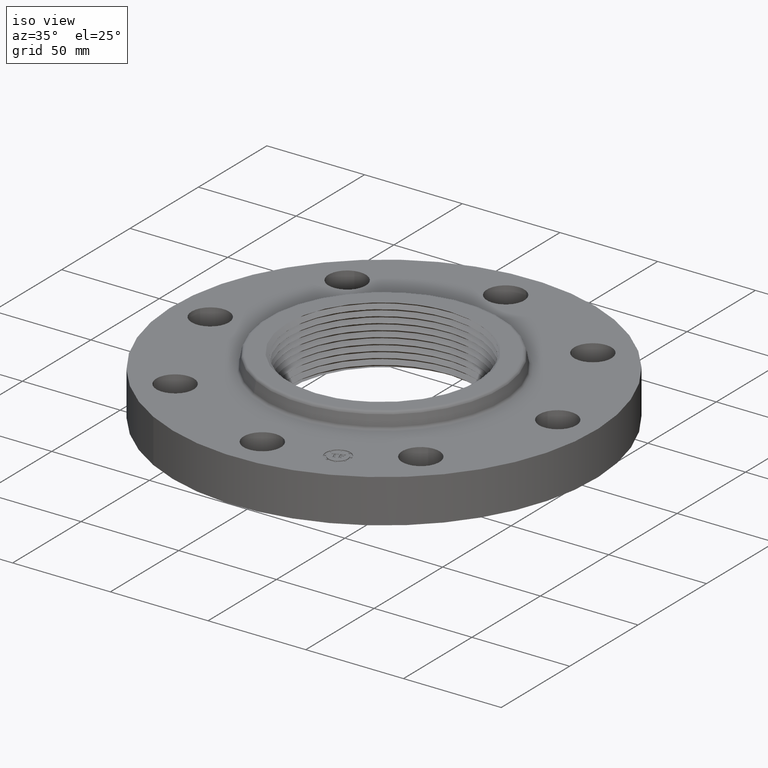
[diagram: clean part render]
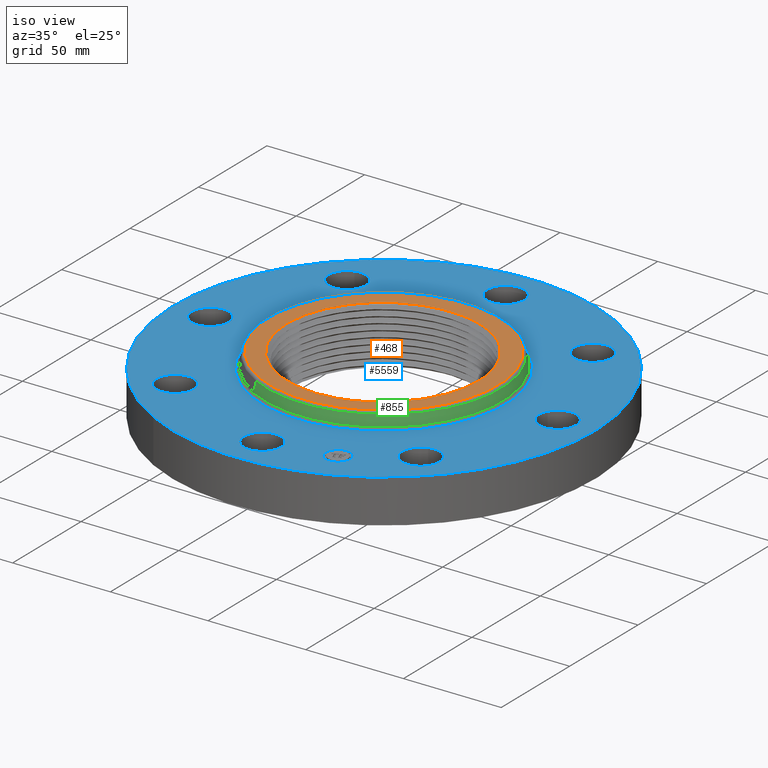
[diagram: same view with three faces highlighted in distinct colors, each labeled with its STEP entity id]
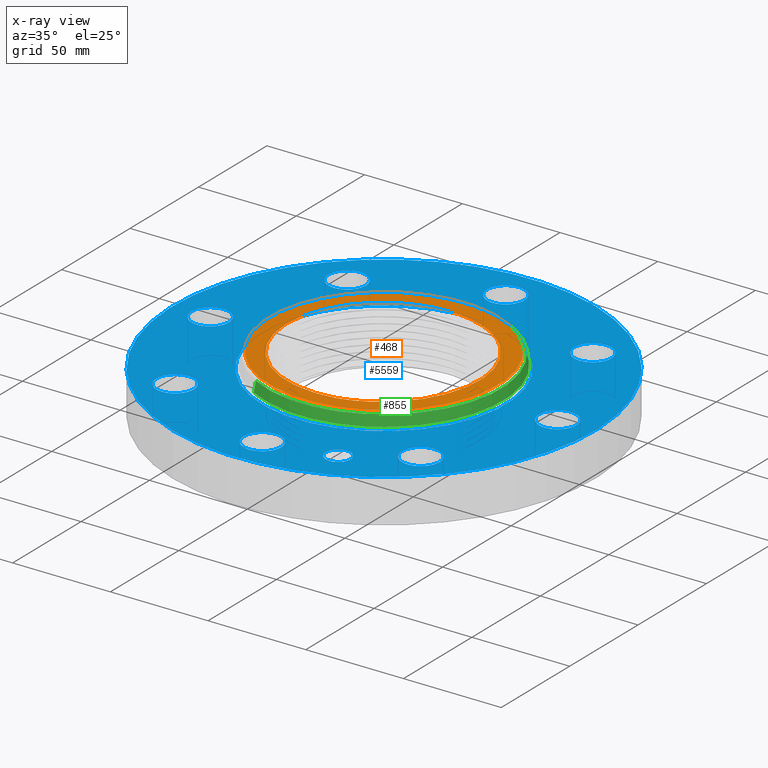
[diagram: x-ray of the same camera — body ghosted, the three highlighted faces saturated]
A machine part, iso view with three faces highlighted in distinct colors.
The next image is the same camera in x-ray (body ghosted, the three faces saturated) — at least one of them is partly hidden behind the body in this view.
Their STEP definitions:

[orange] entity #468 — the highlighted planar face has unit normal (0, 0, -1).
#330=AXIS2_PLACEMENT_3D('Plane Axis2P3D',#327,#328,#329) ;
#334=AXIS2_PLACEMENT_3D('Circle Axis2P3D',#332,#333,$) ;
#343=AXIS2_PLACEMENT_3D('Circle Axis2P3D',#341,#342,$) ;
#352=AXIS2_PLACEMENT_3D('Circle Axis2P3D',#350,#351,$) ;
#327=CARTESIAN_POINT('Axis2P3D Location',(0.,2.29999265812,1.19)) ;
#332=CARTESIAN_POINT('Axis2P3D Location',(0.,0.,1.19)) ;
#336=CARTESIAN_POINT('Vertex',(1.1026752189,2.01843344924,1.19)) ;
#338=CARTESIAN_POINT('Vertex',(-1.1026752189,-2.01843344924,1.19)) ;
#341=CARTESIAN_POINT('Axis2P3D Location',(0.,0.,1.19)) ;
#350=CARTESIAN_POINT('Axis2P3D Location',(0.,2.79741234551E-016,1.19)) ;
#354=CARTESIAN_POINT('Vertex',(-0.173145763064,1.88586947374,1.18999998745)) ;
#356=CARTESIAN_POINT('Vertex',(-0.012973802318,1.89375679819,1.19000001267)) ;
#360=CARTESIAN_POINT('Control Point',(6.08389549083E-007,1.8940309938,1.19)) ;
#361=CARTESIAN_POINT('Control Point',(-0.00259453115065,1.89398504057,1.19)) ;
#362=CARTESIAN_POINT('Control Point',(-0.00518955092956,1.89393464195,1.19)) ;
#363=CARTESIAN_POINT('Control Point',(-0.00778445313768,1.89387979795,1.19)) ;
#364=CARTESIAN_POINT('Control Point',(-0.010379202862,1.89382050942,1.19)) ;
#365=CARTESIAN_POINT('Control Point',(-0.012973802297,1.89375677645,1.19)) ;
#366=CARTESIAN_POINT('Vertex',(6.08389549063E-007,1.8940309938,1.19)) ;
#370=CARTESIAN_POINT('Control Point',(0.950521699549,-1.73991951894,1.19)) ;
#371=CARTESIAN_POINT('Control Point',(1.07749882745,-1.66773656651,1.19)) ;
#372=CARTESIAN_POINT('Control Point',(1.19772911907,-1.58391506986,1.19)) ;
#373=CARTESIAN_POINT('Control Point',(1.30977614698,-1.48928683391,1.19)) ;
#374=CARTESIAN_POINT('Control Point',(1.51496417429,-1.28060908227,1.19)) ;
#375=CARTESIAN_POINT('Control Point',(1.67818530347,-1.03826564195,1.19)) ;
#376=CARTESIAN_POINT('Control Point',(1.74827643949,-0.909954205358,1.19)) ;
#377=CARTESIAN_POINT('Control Point',(1.8349238505,-0.709027775724,1.19)) ;
#378=CARTESIAN_POINT('Control Point',(1.89271472161,-0.498963077779,1.19)) ;
#379=CARTESIAN_POINT('Control Point',(1.90870866721,-0.428126976146,1.19)) ;
#380=CARTESIAN_POINT('Control Point',(1.93089912471,-0.303092164195,1.19)) ;
#381=CARTESIAN_POINT('Control Point',(1.94286447886,-0.176816662823,1.19)) ;
#382=CARTESIAN_POINT('Control Point',(1.94610368426,-0.122557860817,1.19)) ;
#383=CARTESIAN_POINT('Control Point',(1.95104228858,0.0766335295646,1.19)) ;
#384=CARTESIAN_POINT('Control Point',(1.93054619515,0.275298700554,1.19)) ;
#385=CARTESIAN_POINT('Control Point',(1.90222080549,0.417835433954,1.19)) ;
#386=CARTESIAN_POINT('Control Point',(1.81424012147,0.71318000722,1.19)) ;
#387=CARTESIAN_POINT('Control Point',(1.67016924184,0.985230165008,1.19)) ;
#388=CARTESIAN_POINT('Control Point',(1.57904296639,1.12061024208,1.19)) ;
#389=CARTESIAN_POINT('Control Point',(1.38153596465,1.35611276099,1.19)) ;
#390=CARTESIAN_POINT('Control Point',(1.14222329874,1.54759204427,1.19)) ;
#391=CARTESIAN_POINT('Control Point',(1.021540616,1.62681021989,1.19)) ;
#392=CARTESIAN_POINT('Control Point',(0.755303476809,1.76772872546,1.19)) ;
#393=CARTESIAN_POINT('Control Point',(0.466852144099,1.85411178289,1.19)) ;
#394=CARTESIAN_POINT('Control Point',(0.312304348637,1.88350330767,1.19)) ;
#395=CARTESIAN_POINT('Control Point',(0.155936127333,1.89679221007,1.19)) ;
#396=CARTESIAN_POINT('Control Point',(6.08389550392E-007,1.8940309938,1.19)) ;
#397=CARTESIAN_POINT('Vertex',(0.950521699549,-1.73991951894,1.19)) ;
#401=CARTESIAN_POINT('Control Point',(0.403986261799,-1.95116588287,1.19)) ;
#402=CARTESIAN_POINT('Control Point',(0.51888408045,-1.92535251635,1.19)) ;
#403=CARTESIAN_POINT('Control Point',(0.63180336405,-1.89106574324,1.19)) ;
#404=CARTESIAN_POINT('Control Point',(0.7419110641,-1.84849966507,1.19)) ;
#405=CARTESIAN_POINT('Control Point',(0.848398445813,-1.79797373776,1.19)) ;
#406=CARTESIAN_POINT('Control Point',(0.950521699549,-1.73991951894,1.19)) ;
#407=CARTESIAN_POINT('Vertex',(0.403986261799,-1.95116588287,1.19)) ;
#411=CARTESIAN_POINT('Control Point',(0.403986261799,-1.95116588287,1.19)) ;
#412=CARTESIAN_POINT('Control Point',(0.324128917094,-1.96643591902,1.19)) ;
#413=CARTESIAN_POINT('Control Point',(0.24352207997,-1.97762671431,1.19)) ;
#414=CARTESIAN_POINT('Control Point',(0.162442773936,-1.98468711992,1.19)) ;
#415=CARTESIAN_POINT('Control Point',(0.0811742327437,-1.98759417153,1.19)) ;
#416=CARTESIAN_POINT('Control Point',(-6.79131700448E-007,-1.9863540629,1.19)) ;
#417=CARTESIAN_POINT('Vertex',(-6.79131700448E-007,-1.9863540629,1.19)) ;
#421=CARTESIAN_POINT('Control Point',(-6.79131695482E-007,-1.9863540629,1.19)) ;
#422=CARTESIAN_POINT('Control Point',(-0.146205340488,-1.98412049538,1.19)) ;
#423=CARTESIAN_POINT('Control Point',(-0.292106074923,-1.96843363483,1.19)) ;
#424=CARTESIAN_POINT('Control Point',(-0.436016495618,-1.93933717415,1.19)) ;
#425=CARTESIAN_POINT('Control Point',(-0.716657180111,-1.85500879423,1.19)) ;
#426=CARTESIAN_POINT('Control Point',(-0.976643966237,-1.72099810229,1.19)) ;
#427=CARTESIAN_POINT('Control Point',(-1.0999965601,-1.64217784501,1.19)) ;
#428=CARTESIAN_POINT('Control Point',(-1.33057233058,-1.4627729696,1.19)) ;
#429=CARTESIAN_POINT('Control Point',(-1.52403344203,-1.24444604679,1.19)) ;
#430=CARTESIAN_POINT('Control Point',(-1.61031420342,-1.12666008249,1.19)) ;
#431=CARTESIAN_POINT('Control Point',(-1.7598972063,-0.876707541858,1.19)) ;
#432=CARTESIAN_POINT('Control Point',(-1.86082073723,-0.603788677264,1.19)) ;
#433=CARTESIAN_POINT('Control Point',(-1.89839469366,-0.463129279269,1.19)) ;
#434=CARTESIAN_POINT('Control Point',(-1.93477893334,-0.24826340102,1.19)) ;
#435=CARTESIAN_POINT('Control Point',(-1.94094806622,-0.0312796602361,1.19)) ;
#436=CARTESIAN_POINT('Control Point',(-1.93963376448,0.0410433624651,1.19)) ;
#437=CARTESIAN_POINT('Control Point',(-1.93027555104,0.185294765829,1.19)) ;
#438=CARTESIAN_POINT('Control Point',(-1.90755619948,0.327954244201,1.19)) ;
#439=CARTESIAN_POINT('Control Point',(-1.89288233938,0.398667956343,1.19)) ;
#440=CARTESIAN_POINT('Control Point',(-1.8390523473,0.608362113444,1.19)) ;
#441=CARTESIAN_POINT('Control Point',(-1.75636119137,0.808931759632,1.19)) ;
#442=CARTESIAN_POINT('Control Point',(-1.68890905192,0.936997803843,1.19)) ;
#443=CARTESIAN_POINT('Control Point',(-1.52260223691,1.19164632821,1.19)) ;
#444=CARTESIAN_POINT('Control Point',(-1.30988345987,1.40880351044,1.19)) ;
#445=CARTESIAN_POINT('Control Point',(-1.1867848717,1.5107487215,1.19)) ;
#446=CARTESIAN_POINT('Control Point',(-1.0541038222,1.59911214192,1.19)) ;
#447=CARTESIAN_POINT('Control Point',(-0.913877298185,1.67284458901,1.19)) ;
#448=CARTESIAN_POINT('Vertex',(-0.913877298185,1.67284458901,1.19)) ;
#452=CARTESIAN_POINT('Control Point',(-0.913877298185,1.67284458901,1.19)) ;
#453=CARTESIAN_POINT('Control Point',(-0.776260594503,1.74520476744,1.19)) ;
#454=CARTESIAN_POINT('Control Point',(-0.631376191474,1.80347363653,1.19)) ;
#455=CARTESIAN_POINT('Control Point',(-0.481138446971,1.84666173885,1.19)) ;
#456=CARTESIAN_POINT('Control Point',(-0.327677373104,1.87417490424,1.19)) ;
#457=CARTESIAN_POINT('Control Point',(-0.173145756404,1.8858694614,1.19)) ;
#328=DIRECTION('Axis2P3D Direction',(0.,0.,-0.0393700787402)) ;
#329=DIRECTION('Axis2P3D XDirection',(0.0393700787402,0.,0.)) ;
#333=DIRECTION('Axis2P3D Direction',(0.,0.,-0.0393700787402)) ;
#342=DIRECTION('Axis2P3D Direction',(0.,0.,-0.0393700787402)) ;
#351=DIRECTION('Axis2P3D Direction',(0.,0.,-0.0393700787402)) ;
#347=ORIENTED_EDGE('',*,*,#340,.F.) ;
#348=ORIENTED_EDGE('',*,*,#345,.F.) ;
#460=ORIENTED_EDGE('',*,*,#358,.T.) ;
#461=ORIENTED_EDGE('',*,*,#368,.F.) ;
#462=ORIENTED_EDGE('',*,*,#399,.F.) ;
#463=ORIENTED_EDGE('',*,*,#409,.F.) ;
#464=ORIENTED_EDGE('',*,*,#419,.T.) ;
#465=ORIENTED_EDGE('',*,*,#450,.T.) ;
#466=ORIENTED_EDGE('',*,*,#458,.T.) ;
#467=FACE_BOUND('',#459,.T.) ;
#468=ADVANCED_FACE('PartBody',(#349,#467),#331,.F.) ;
#359=B_SPLINE_CURVE_WITH_KNOTS('',5,(#360,#361,#362,#363,#364,#365),.UNSPECIFIED.,.F.,.U.,(6,6),(0.,0.472517597936),.UNSPECIFIED.) ;
#369=B_SPLINE_CURVE_WITH_KNOTS('',5,(#370,#371,#372,#373,#374,#375,#376,#377,#378,#379,#380,#381,#382,#383,#384,#385,#386,#387,#388,#389,#390,#391,#392,#393,#394,#395,#396),.UNSPECIFIED.,.F.,.U.,(6,3,3,3,3,3,3,3,6),(0.,25.9764141353,51.9564745681,64.9457083403,74.6874866032,100.677069902,129.944698618,155.964097492,184.356511736),.UNSPECIFIED.) ;
#400=B_SPLINE_CURVE_WITH_KNOTS('',5,(#401,#402,#403,#404,#405,#406),.UNSPECIFIED.,.F.,.U.,(6,6),(0.,20.8919194802),.UNSPECIFIED.) ;
#410=B_SPLINE_CURVE_WITH_KNOTS('',5,(#411,#412,#413,#414,#415,#416),.UNSPECIFIED.,.F.,.U.,(6,6),(0.,14.4239536877),.UNSPECIFIED.) ;
#420=B_SPLINE_CURVE_WITH_KNOTS('',5,(#421,#422,#423,#424,#425,#426,#427,#428,#429,#430,#431,#432,#433,#434,#435,#436,#437,#438,#439,#440,#441,#442,#443,#444,#445,#446,#447),.UNSPECIFIED.,.F.,.U.,(6,3,3,3,3,3,3,3,6),(0.,25.9790767314,51.9769742026,77.9860260901,103.976077442,116.962766454,129.945373543,155.912036395,184.632530254),.UNSPECIFIED.) ;
#451=B_SPLINE_CURVE_WITH_KNOTS('',5,(#452,#453,#454,#455,#456,#457),.UNSPECIFIED.,.F.,.U.,(6,6),(0.,28.1859635254),.UNSPECIFIED.) ;
#335=CIRCLE('generated circle',#334,2.29999265812) ;
#344=CIRCLE('generated circle',#343,2.29999265812) ;
#353=CIRCLE('generated circle',#352,1.89380123792) ;
#340=EDGE_CURVE('',#337,#339,#335,.T.) ;
#345=EDGE_CURVE('',#339,#337,#344,.T.) ;
#358=EDGE_CURVE('',#355,#357,#353,.T.) ;
#368=EDGE_CURVE('',#367,#357,#359,.T.) ;
#399=EDGE_CURVE('',#398,#367,#369,.T.) ;
#409=EDGE_CURVE('',#408,#398,#400,.T.) ;
#419=EDGE_CURVE('',#408,#418,#410,.T.) ;
#450=EDGE_CURVE('',#418,#449,#420,.T.) ;
#458=EDGE_CURVE('',#449,#355,#451,.T.) ;
#346=EDGE_LOOP('',(#347,#348)) ;
#459=EDGE_LOOP('',(#460,#461,#462,#463,#464,#465,#466)) ;
#349=FACE_OUTER_BOUND('',#346,.T.) ;
#331=PLANE('',#330) ;
#337=VERTEX_POINT('',#336) ;
#339=VERTEX_POINT('',#338) ;
#355=VERTEX_POINT('',#354) ;
#357=VERTEX_POINT('',#356) ;
#367=VERTEX_POINT('',#366) ;
#398=VERTEX_POINT('',#397) ;
#408=VERTEX_POINT('',#407) ;
#418=VERTEX_POINT('',#417) ;
#449=VERTEX_POINT('',#448) ;

[blue] entity #5559 — the highlighted planar face has unit normal (0, 0, -1).
#490=AXIS2_PLACEMENT_3D('Circle Axis2P3D',#488,#489,$) ;
#502=AXIS2_PLACEMENT_3D('Circle Axis2P3D',#500,#501,$) ;
#533=AXIS2_PLACEMENT_3D('Circle Axis2P3D',#531,#532,$) ;
#545=AXIS2_PLACEMENT_3D('Circle Axis2P3D',#543,#544,$) ;
#576=AXIS2_PLACEMENT_3D('Circle Axis2P3D',#574,#575,$) ;
#588=AXIS2_PLACEMENT_3D('Circle Axis2P3D',#586,#587,$) ;
#619=AXIS2_PLACEMENT_3D('Circle Axis2P3D',#617,#618,$) ;
#631=AXIS2_PLACEMENT_3D('Circle Axis2P3D',#629,#630,$) ;
#662=AXIS2_PLACEMENT_3D('Circle Axis2P3D',#660,#661,$) ;
#674=AXIS2_PLACEMENT_3D('Circle Axis2P3D',#672,#673,$) ;
#705=AXIS2_PLACEMENT_3D('Circle Axis2P3D',#703,#704,$) ;
#717=AXIS2_PLACEMENT_3D('Circle Axis2P3D',#715,#716,$) ;
#748=AXIS2_PLACEMENT_3D('Circle Axis2P3D',#746,#747,$) ;
#760=AXIS2_PLACEMENT_3D('Circle Axis2P3D',#758,#759,$) ;
#863=AXIS2_PLACEMENT_3D('Circle Axis2P3D',#861,#862,$) ;
#889=AXIS2_PLACEMENT_3D('Circle Axis2P3D',#887,#888,$) ;
#913=AXIS2_PLACEMENT_3D('Circle Axis2P3D',#911,#912,$) ;
#932=AXIS2_PLACEMENT_3D('Circle Axis2P3D',#930,#931,$) ;
#963=AXIS2_PLACEMENT_3D('Circle Axis2P3D',#961,#962,$) ;
#975=AXIS2_PLACEMENT_3D('Circle Axis2P3D',#973,#974,$) ;
#5499=AXIS2_PLACEMENT_3D('Plane Axis2P3D',#5496,#5497,#5498) ;
#5543=AXIS2_PLACEMENT_3D('Circle Axis2P3D',#5541,#5542,$) ;
#5552=AXIS2_PLACEMENT_3D('Circle Axis2P3D',#5550,#5551,$) ;
#478=CARTESIAN_POINT('Vertex',(2.58045105834,-2.83470484541,0.880000000004)) ;
#485=CARTESIAN_POINT('Vertex',(2.36929640998,-2.11504262292,0.880000000004)) ;
#488=CARTESIAN_POINT('Axis2P3D Location',(2.47487373416,-2.47487373416,0.880000000004)) ;
#500=CARTESIAN_POINT('Axis2P3D Location',(2.47487373416,-2.47487373416,0.880000000004)) ;
#521=CARTESIAN_POINT('Vertex',(-3.82909346072,0.179784576977,0.880000000004)) ;
#528=CARTESIAN_POINT('Vertex',(-3.1709065393,-0.179784576977,0.880000000004)) ;
#531=CARTESIAN_POINT('Axis2P3D Location',(-3.50000000001,-4.28626379703E-016,0.880000000004)) ;
#543=CARTESIAN_POINT('Axis2P3D Location',(-3.50000000001,-4.28626379703E-016,0.880000000004)) ;
#564=CARTESIAN_POINT('Vertex',(2.83470484541,2.58045105834,0.880000000004)) ;
#571=CARTESIAN_POINT('Vertex',(2.11504262292,2.36929640998,0.880000000004)) ;
#574=CARTESIAN_POINT('Axis2P3D Location',(2.47487373416,2.47487373416,0.880000000004)) ;
#586=CARTESIAN_POINT('Axis2P3D Location',(2.47487373416,2.47487373416,0.880000000004)) ;
#607=CARTESIAN_POINT('Vertex',(-2.83470484541,-2.58045105834,0.880000000004)) ;
#614=CARTESIAN_POINT('Vertex',(-2.11504262292,-2.36929640998,0.880000000004)) ;
#617=CARTESIAN_POINT('Axis2P3D Location',(-2.47487373416,-2.47487373416,0.880000000004)) ;
#629=CARTESIAN_POINT('Axis2P3D Location',(-2.47487373416,-2.47487373416,0.880000000004)) ;
#650=CARTESIAN_POINT('Vertex',(0.179784576977,3.82909346072,0.880000000004)) ;
#657=CARTESIAN_POINT('Vertex',(-0.179784576977,3.1709065393,0.880000000004)) ;
#660=CARTESIAN_POINT('Axis2P3D Location',(-6.42939569555E-016,3.50000000001,0.880000000004)) ;
#672=CARTESIAN_POINT('Axis2P3D Location',(-6.42939569555E-016,3.50000000001,0.880000000004)) ;
#693=CARTESIAN_POINT('Vertex',(-0.179784576977,-3.82909346072,0.880000000004)) ;
#700=CARTESIAN_POINT('Vertex',(0.179784576977,-3.1709065393,0.880000000004)) ;
#703=CARTESIAN_POINT('Axis2P3D Location',(-3.45169279251E-016,-3.50000000001,0.880000000004)) ;
#715=CARTESIAN_POINT('Axis2P3D Location',(-3.45169279251E-016,-3.50000000001,0.880000000004)) ;
#736=CARTESIAN_POINT('Vertex',(-2.58045105834,2.83470484541,0.880000000004)) ;
#743=CARTESIAN_POINT('Vertex',(-2.36929640998,2.11504262292,0.880000000004)) ;
#746=CARTESIAN_POINT('Axis2P3D Location',(-2.47487373416,2.47487373416,0.880000000004)) ;
#758=CARTESIAN_POINT('Axis2P3D Location',(-2.47487373416,2.47487373416,0.880000000004)) ;
#861=CARTESIAN_POINT('Axis2P3D Location',(0.,0.,0.880000000004)) ;
#865=CARTESIAN_POINT('Vertex',(-1.1771555679,-2.1547688136,0.880000000004)) ;
#867=CARTESIAN_POINT('Vertex',(1.1771555679,2.1547688136,0.880000000004)) ;
#887=CARTESIAN_POINT('Axis2P3D Location',(0.,0.,0.880000000004)) ;
#908=CARTESIAN_POINT('Vertex',(-2.03755853908,-3.72972588805,0.880000000004)) ;
#911=CARTESIAN_POINT('Axis2P3D Location',(0.,0.,0.880000000004)) ;
#915=CARTESIAN_POINT('Vertex',(2.03755853908,3.72972588805,0.880000000004)) ;
#930=CARTESIAN_POINT('Axis2P3D Location',(0.,0.,0.880000000004)) ;
#951=CARTESIAN_POINT('Vertex',(3.82909346072,-0.179784576977,0.880000000004)) ;
#958=CARTESIAN_POINT('Vertex',(3.1709065393,0.179784576977,0.880000000004)) ;
#961=CARTESIAN_POINT('Axis2P3D Location',(3.50000000001,0.,0.880000000004)) ;
#973=CARTESIAN_POINT('Axis2P3D Location',(3.50000000001,0.,0.880000000004)) ;
#5496=CARTESIAN_POINT('Axis2P3D Location',(0.,4.25000000002,0.880000000004)) ;
#5541=CARTESIAN_POINT('Axis2P3D Location',(1.33939201328,-3.2335783638,0.880000000004)) ;
#5545=CARTESIAN_POINT('Vertex',(1.56805219758,-3.13886421429,0.880000000004)) ;
#5547=CARTESIAN_POINT('Vertex',(1.11073182899,-3.32829251331,0.880000000004)) ;
#5550=CARTESIAN_POINT('Axis2P3D Location',(1.33939201328,-3.2335783638,0.880000000004)) ;
#489=DIRECTION('Axis2P3D Direction',(0.,-0.,-0.0393700787402)) ;
#501=DIRECTION('Axis2P3D Direction',(0.,-0.,-0.0393700787402)) ;
#532=DIRECTION('Axis2P3D Direction',(-0.,0.,-0.0393700787402)) ;
#544=DIRECTION('Axis2P3D Direction',(-0.,0.,-0.0393700787402)) ;
#575=DIRECTION('Axis2P3D Direction',(0.,0.,-0.0393700787402)) ;
#587=DIRECTION('Axis2P3D Direction',(0.,0.,-0.0393700787402)) ;
#618=DIRECTION('Axis2P3D Direction',(-0.,0.,-0.0393700787402)) ;
#630=DIRECTION('Axis2P3D Direction',(-0.,0.,-0.0393700787402)) ;
#661=DIRECTION('Axis2P3D Direction',(0.,0.,-0.0393700787402)) ;
#673=DIRECTION('Axis2P3D Direction',(0.,0.,-0.0393700787402)) ;
#704=DIRECTION('Axis2P3D Direction',(0.,-0.,-0.0393700787402)) ;
#716=DIRECTION('Axis2P3D Direction',(0.,-0.,-0.0393700787402)) ;
#747=DIRECTION('Axis2P3D Direction',(0.,0.,-0.0393700787402)) ;
#759=DIRECTION('Axis2P3D Direction',(0.,0.,-0.0393700787402)) ;
#862=DIRECTION('Axis2P3D Direction',(0.,0.,-0.0393700787402)) ;
#888=DIRECTION('Axis2P3D Direction',(0.,0.,-0.0393700787402)) ;
#912=DIRECTION('Axis2P3D Direction',(0.,0.,-0.0393700787402)) ;
#931=DIRECTION('Axis2P3D Direction',(0.,0.,-0.0393700787402)) ;
#962=DIRECTION('Axis2P3D Direction',(0.,-0.,-0.0393700787402)) ;
#974=DIRECTION('Axis2P3D Direction',(0.,-0.,-0.0393700787402)) ;
#5497=DIRECTION('Axis2P3D Direction',(0.,0.,-0.0393700787402)) ;
#5498=DIRECTION('Axis2P3D XDirection',(0.0393700787402,0.,0.)) ;
#5542=DIRECTION('Axis2P3D Direction',(0.,0.,-0.0393700787402)) ;
#5551=DIRECTION('Axis2P3D Direction',(0.,0.,-0.0393700787402)) ;
#5502=ORIENTED_EDGE('',*,*,#934,.F.) ;
#5503=ORIENTED_EDGE('',*,*,#917,.F.) ;
#5506=ORIENTED_EDGE('',*,*,#977,.T.) ;
#5507=ORIENTED_EDGE('',*,*,#965,.T.) ;
#5510=ORIENTED_EDGE('',*,*,#869,.T.) ;
#5511=ORIENTED_EDGE('',*,*,#891,.T.) ;
#5514=ORIENTED_EDGE('',*,*,#492,.T.) ;
#5515=ORIENTED_EDGE('',*,*,#504,.T.) ;
#5518=ORIENTED_EDGE('',*,*,#707,.T.) ;
#5519=ORIENTED_EDGE('',*,*,#719,.T.) ;
#5522=ORIENTED_EDGE('',*,*,#621,.T.) ;
#5523=ORIENTED_EDGE('',*,*,#633,.T.) ;
#5526=ORIENTED_EDGE('',*,*,#535,.T.) ;
#5527=ORIENTED_EDGE('',*,*,#547,.T.) ;
#5530=ORIENTED_EDGE('',*,*,#750,.T.) ;
#5531=ORIENTED_EDGE('',*,*,#762,.T.) ;
#5534=ORIENTED_EDGE('',*,*,#664,.T.) ;
#5535=ORIENTED_EDGE('',*,*,#676,.T.) ;
#5538=ORIENTED_EDGE('',*,*,#578,.T.) ;
#5539=ORIENTED_EDGE('',*,*,#590,.T.) ;
#5556=ORIENTED_EDGE('',*,*,#5549,.T.) ;
#5557=ORIENTED_EDGE('',*,*,#5554,.T.) ;
#5508=FACE_BOUND('',#5505,.T.) ;
#5512=FACE_BOUND('',#5509,.T.) ;
#5516=FACE_BOUND('',#5513,.T.) ;
#5520=FACE_BOUND('',#5517,.T.) ;
#5524=FACE_BOUND('',#5521,.T.) ;
#5528=FACE_BOUND('',#5525,.T.) ;
#5532=FACE_BOUND('',#5529,.T.) ;
#5536=FACE_BOUND('',#5533,.T.) ;
#5540=FACE_BOUND('',#5537,.T.) ;
#5558=FACE_BOUND('',#5555,.T.) ;
#5559=ADVANCED_FACE('PartBody',(#5504,#5508,#5512,#5516,#5520,#5524,#5528,#5532,#5536,#5540,#5558),#5500,.F.) ;
#491=CIRCLE('generated circle',#490,0.375000000002) ;
#503=CIRCLE('generated circle',#502,0.375000000002) ;
#534=CIRCLE('generated circle',#533,0.375000000001) ;
#546=CIRCLE('generated circle',#545,0.375000000001) ;
#577=CIRCLE('generated circle',#576,0.375000000002) ;
#589=CIRCLE('generated circle',#588,0.375000000002) ;
#620=CIRCLE('generated circle',#619,0.375000000002) ;
#632=CIRCLE('generated circle',#631,0.375000000002) ;
#663=CIRCLE('generated circle',#662,0.375000000002) ;
#675=CIRCLE('generated circle',#674,0.375000000002) ;
#706=CIRCLE('generated circle',#705,0.375000000002) ;
#718=CIRCLE('generated circle',#717,0.375000000002) ;
#749=CIRCLE('generated circle',#748,0.375000000002) ;
#761=CIRCLE('generated circle',#760,0.375000000002) ;
#864=CIRCLE('generated circle',#863,2.45534597788) ;
#890=CIRCLE('generated circle',#889,2.45534597788) ;
#914=CIRCLE('generated circle',#913,4.25000000002) ;
#933=CIRCLE('generated circle',#932,4.25000000002) ;
#964=CIRCLE('generated circle',#963,0.375000000002) ;
#976=CIRCLE('generated circle',#975,0.375000000002) ;
#5544=CIRCLE('generated circle',#5543,0.247500000001) ;
#5553=CIRCLE('generated circle',#5552,0.247500000001) ;
#492=EDGE_CURVE('',#479,#486,#491,.T.) ;
#504=EDGE_CURVE('',#486,#479,#503,.T.) ;
#535=EDGE_CURVE('',#522,#529,#534,.T.) ;
#547=EDGE_CURVE('',#529,#522,#546,.T.) ;
#578=EDGE_CURVE('',#565,#572,#577,.T.) ;
#590=EDGE_CURVE('',#572,#565,#589,.T.) ;
#621=EDGE_CURVE('',#608,#615,#620,.T.) ;
#633=EDGE_CURVE('',#615,#608,#632,.T.) ;
#664=EDGE_CURVE('',#651,#658,#663,.T.) ;
#676=EDGE_CURVE('',#658,#651,#675,.T.) ;
#707=EDGE_CURVE('',#694,#701,#706,.T.) ;
#719=EDGE_CURVE('',#701,#694,#718,.T.) ;
#750=EDGE_CURVE('',#737,#744,#749,.T.) ;
#762=EDGE_CURVE('',#744,#737,#761,.T.) ;
#869=EDGE_CURVE('',#866,#868,#864,.T.) ;
#891=EDGE_CURVE('',#868,#866,#890,.T.) ;
#917=EDGE_CURVE('',#909,#916,#914,.T.) ;
#934=EDGE_CURVE('',#916,#909,#933,.T.) ;
#965=EDGE_CURVE('',#952,#959,#964,.T.) ;
#977=EDGE_CURVE('',#959,#952,#976,.T.) ;
#5549=EDGE_CURVE('',#5546,#5548,#5544,.T.) ;
#5554=EDGE_CURVE('',#5548,#5546,#5553,.T.) ;
#5501=EDGE_LOOP('',(#5502,#5503)) ;
#5505=EDGE_LOOP('',(#5506,#5507)) ;
#5509=EDGE_LOOP('',(#5510,#5511)) ;
#5513=EDGE_LOOP('',(#5514,#5515)) ;
#5517=EDGE_LOOP('',(#5518,#5519)) ;
#5521=EDGE_LOOP('',(#5522,#5523)) ;
#5525=EDGE_LOOP('',(#5526,#5527)) ;
#5529=EDGE_LOOP('',(#5530,#5531)) ;
#5533=EDGE_LOOP('',(#5534,#5535)) ;
#5537=EDGE_LOOP('',(#5538,#5539)) ;
#5555=EDGE_LOOP('',(#5556,#5557)) ;
#5504=FACE_OUTER_BOUND('',#5501,.T.) ;
#5500=PLANE('',#5499) ;
#479=VERTEX_POINT('',#478) ;
#486=VERTEX_POINT('',#485) ;
#522=VERTEX_POINT('',#521) ;
#529=VERTEX_POINT('',#528) ;
#565=VERTEX_POINT('',#564) ;
#572=VERTEX_POINT('',#571) ;
#608=VERTEX_POINT('',#607) ;
#615=VERTEX_POINT('',#614) ;
#651=VERTEX_POINT('',#650) ;
#658=VERTEX_POINT('',#657) ;
#694=VERTEX_POINT('',#693) ;
#701=VERTEX_POINT('',#700) ;
#737=VERTEX_POINT('',#736) ;
#744=VERTEX_POINT('',#743) ;
#866=VERTEX_POINT('',#865) ;
#868=VERTEX_POINT('',#867) ;
#909=VERTEX_POINT('',#908) ;
#916=VERTEX_POINT('',#915) ;
#952=VERTEX_POINT('',#951) ;
#959=VERTEX_POINT('',#958) ;
#5546=VERTEX_POINT('',#5545) ;
#5548=VERTEX_POINT('',#5547) ;

[green] entity #855 — the highlighted conical surface has half-angle 10 deg.
#803=AXIS2_PLACEMENT_3D('Circle Axis2P3D',#801,#802,$) ;
#816=AXIS2_PLACEMENT_3D('Cone Axis2P3D',#813,#814,#815) ;
#846=AXIS2_PLACEMENT_3D('Circle Axis2P3D',#844,#845,$) ;
#779=CARTESIAN_POINT('Vertex',(-1.13100373815,-2.07028845589,1.14041889066)) ;
#781=CARTESIAN_POINT('Vertex',(1.13100373815,2.07028845589,1.14041889066)) ;
#801=CARTESIAN_POINT('Axis2P3D Location',(0.,0.,1.14041889066)) ;
#813=CARTESIAN_POINT('Axis2P3D Location',(0.,0.,1.14041889066)) ;
#822=CARTESIAN_POINT('Vertex',(-1.14882704866,-2.10291380694,0.929581109344)) ;
#824=CARTESIAN_POINT('Vertex',(1.14882704866,2.10291380694,0.929581109344)) ;
#827=CARTESIAN_POINT('Line Origine',(-1.1399153934,-2.08660113142,1.035)) ;
#832=CARTESIAN_POINT('Line Origine',(1.1399153934,2.08660113142,1.035)) ;
#844=CARTESIAN_POINT('Axis2P3D Location',(0.,0.,0.929581109344)) ;
#802=DIRECTION('Axis2P3D Direction',(0.,0.,-0.0393700787402)) ;
#814=DIRECTION('Axis2P3D Direction',(0.,0.,-0.0393700787402)) ;
#815=DIRECTION('Axis2P3D XDirection',(0.0188750212049,0.0345504945626,0.)) ;
#828=DIRECTION('Vector Direction',(-0.00327761303565,-0.00599963041829,-0.03877195878)) ;
#833=DIRECTION('Vector Direction',(0.00327761303565,0.00599963041829,-0.03877195878)) ;
#845=DIRECTION('Axis2P3D Direction',(0.,0.,-0.0393700787402)) ;
#829=VECTOR('Line Direction',#828,0.0393700787402) ;
#834=VECTOR('Line Direction',#833,0.0393700787402) ;
#850=ORIENTED_EDGE('',*,*,#848,.F.) ;
#851=ORIENTED_EDGE('',*,*,#836,.T.) ;
#852=ORIENTED_EDGE('',*,*,#805,.T.) ;
#853=ORIENTED_EDGE('',*,*,#831,.F.) ;
#855=ADVANCED_FACE('PartBody',(#854),#817,.T.) ;
#804=CIRCLE('generated circle',#803,2.3590811233) ;
#847=CIRCLE('generated circle',#846,2.3962575127) ;
#817=CONICAL_SURFACE('Cone',#816,2.3590811233,0.174532925199) ;
#805=EDGE_CURVE('',#782,#780,#804,.T.) ;
#831=EDGE_CURVE('',#823,#780,#830,.F.) ;
#836=EDGE_CURVE('',#825,#782,#835,.F.) ;
#848=EDGE_CURVE('',#825,#823,#847,.T.) ;
#849=EDGE_LOOP('',(#850,#851,#852,#853)) ;
#854=FACE_OUTER_BOUND('',#849,.T.) ;
#830=LINE('Line',#827,#829) ;
#835=LINE('Line',#832,#834) ;
#780=VERTEX_POINT('',#779) ;
#782=VERTEX_POINT('',#781) ;
#823=VERTEX_POINT('',#822) ;
#825=VERTEX_POINT('',#824) ;